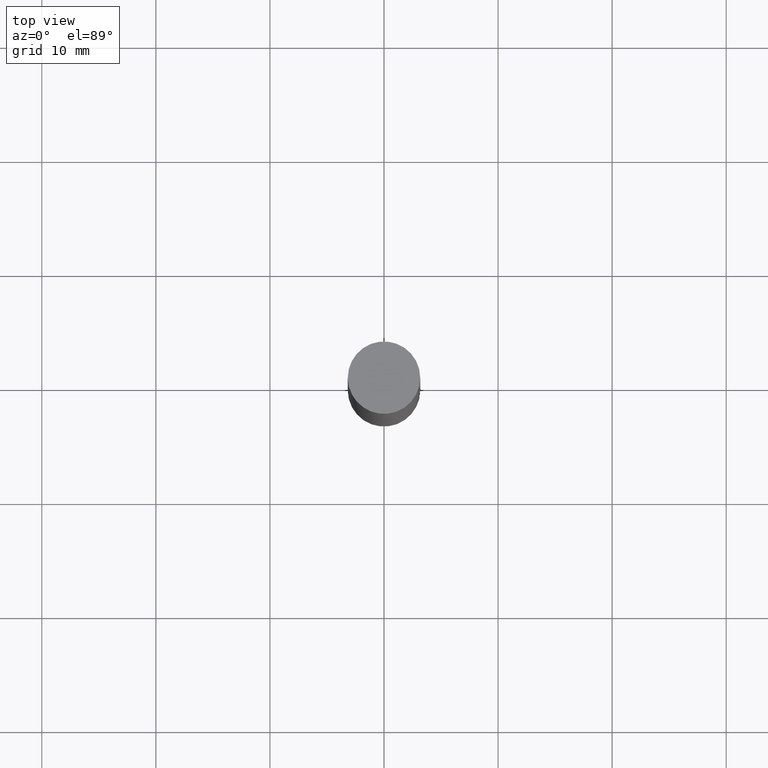
[diagram: clean part render]
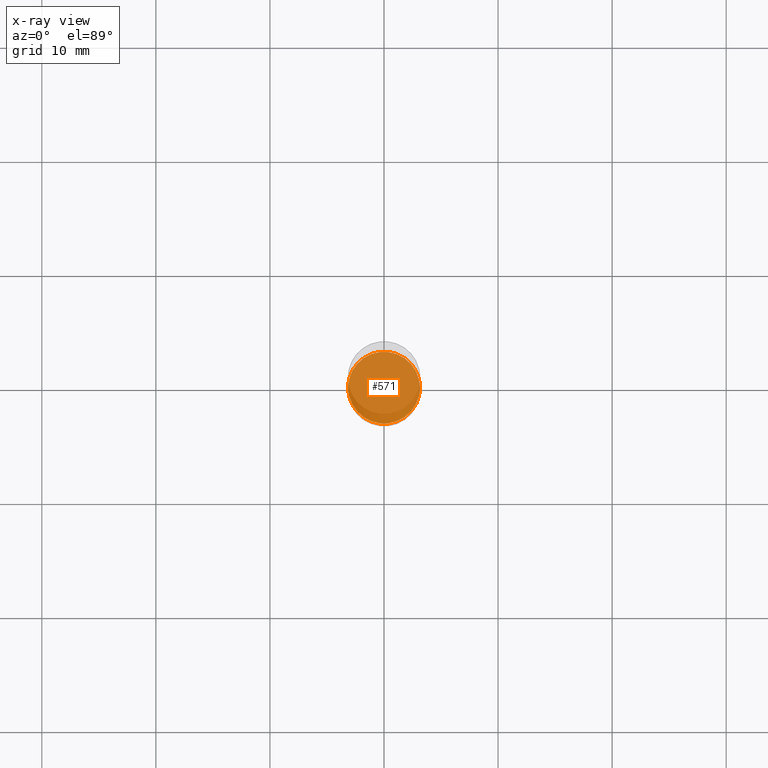
[diagram: x-ray — body ghosted, one internal face saturated and labeled with its STEP entity id]
A machine part, top view, then the same camera in x-ray: the body is ghosted and one INTERNAL B-rep face — a face not visible from any outside direction — is saturated and labeled: STEP entity #571.
In plain terms, the highlighted planar face has unit normal (-0, 0, 1).
Its self-contained STEP definition (entity closure, byte-faithful):
#86 = DIRECTION ( 'NONE',  ( 1.000000000000000000, -6.982962677686265922E-15, 4.876176775795935793E-29 ) ) ;
#120 = AXIS2_PLACEMENT_3D ( 'NONE', #427, #248, #373 ) ;
#140 = CARTESIAN_POINT ( 'NONE',  ( 4.890937612370273194E-29, -6.982962677686291165E-15, -2.000000000000000000 ) ) ;
#164 = CARTESIAN_POINT ( 'NONE',  ( 4.890937612370272633E-29, -6.982962677686290376E-15, -1.999999999999999778 ) ) ;
#178 = EDGE_CURVE ( 'NONE', #454, #322, #350, .T. ) ;
#248 = DIRECTION ( 'NONE',  ( -2.445468806185136597E-29, 3.491481338843145583E-15, 1.000000000000000000 ) ) ;
#276 = EDGE_LOOP ( 'NONE', ( #465, #295 ) ) ;
#295 = ORIENTED_EDGE ( 'NONE', *, *, #178, .F. ) ;
#302 = AXIS2_PLACEMENT_3D ( 'NONE', #140, #564, #86 ) ;
#322 = VERTEX_POINT ( 'NONE', #406 ) ;
#350 = CIRCLE ( 'NONE', #578, 0.1239999999999999991 ) ;
#373 = DIRECTION ( 'NONE',  ( 1.000000000000000000, -6.982962677686270655E-15, 0.000000000000000000 ) ) ;
#384 = DIRECTION ( 'NONE',  ( -2.445468806185136597E-29, 3.491481338843145583E-15, 1.000000000000000000 ) ) ;
#406 = CARTESIAN_POINT ( 'NONE',  ( 0.1239999999999999991, -7.848850049719387701E-15, -1.999999999999999778 ) ) ;
#416 = PLANE ( 'NONE',  #302 ) ;
#427 = CARTESIAN_POINT ( 'NONE',  ( 4.890937612370272633E-29, -6.982962677686290376E-15, -1.999999999999999778 ) ) ;
#454 = VERTEX_POINT ( 'NONE', #617 ) ;
#465 = ORIENTED_EDGE ( 'NONE', *, *, #493, .F. ) ;
#493 = EDGE_CURVE ( 'NONE', #322, #454, #631, .T. ) ;
#564 = DIRECTION ( 'NONE',  ( -2.438088387897960049E-29, 3.491481338843145188E-15, 1.000000000000000000 ) ) ;
#571 = ADVANCED_FACE ( 'NONE', ( #662 ), #416, .F. ) ;
#578 = AXIS2_PLACEMENT_3D ( 'NONE', #164, #384, #633 ) ;
#617 = CARTESIAN_POINT ( 'NONE',  ( -0.1239999999999999991, -6.096591230995543750E-15, -1.999999999999999778 ) ) ;
#631 = CIRCLE ( 'NONE', #120, 0.1239999999999999991 ) ;
#633 = DIRECTION ( 'NONE',  ( 1.000000000000000000, -6.982962677686270655E-15, 0.000000000000000000 ) ) ;
#662 = FACE_OUTER_BOUND ( 'NONE', #276, .T. ) ;